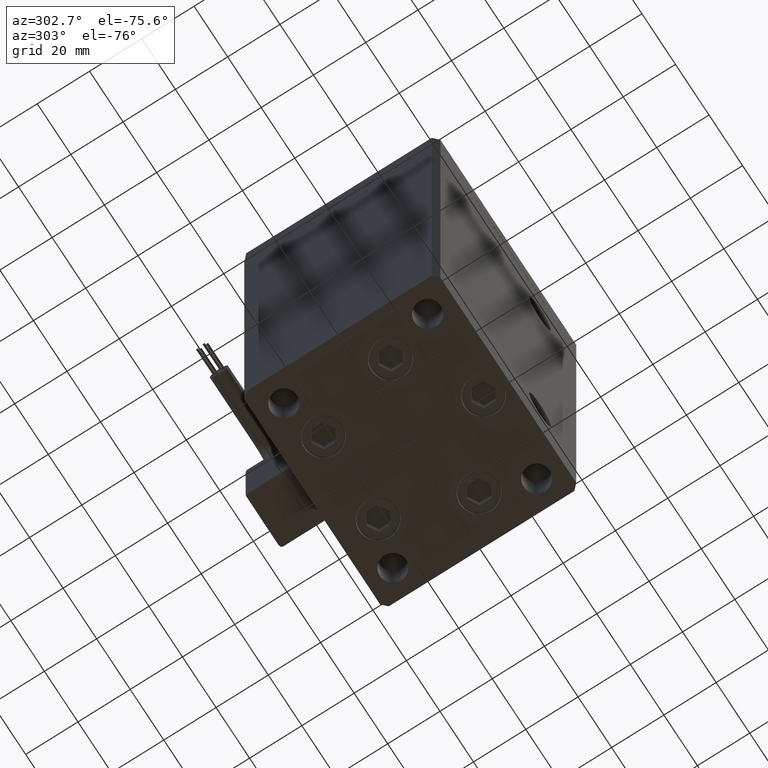
[diagram: clean part render]
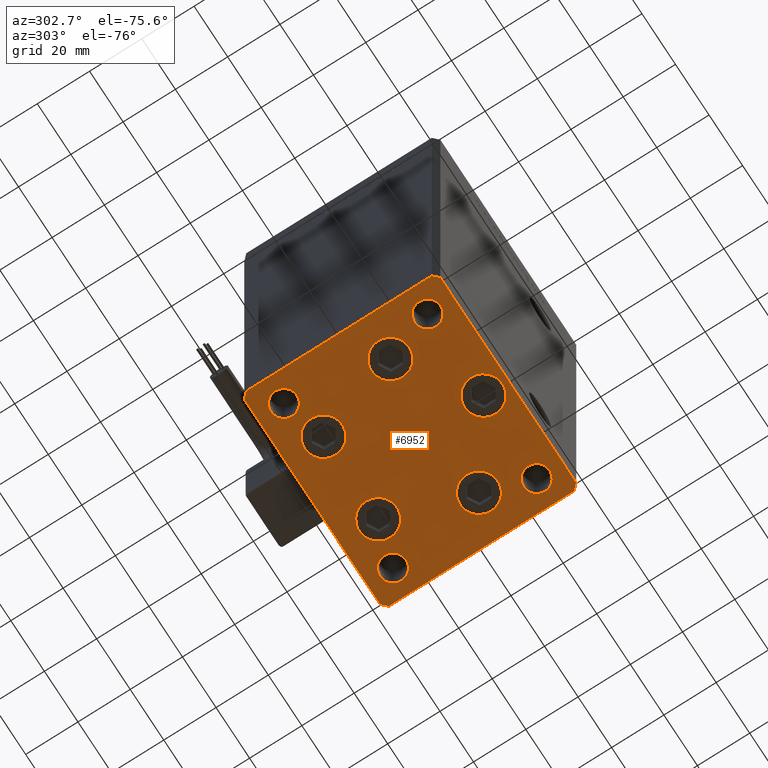
[diagram: same view with one face highlighted and labeled with its STEP entity id]
A machine part, auxiliary view. The second image highlights one B-rep face of the part: STEP entity #6952.
In plain terms, the highlighted planar face has unit normal (0, 0, -1).
Its self-contained STEP definition (entity closure, byte-faithful):
#37 = AXIS2_PLACEMENT_3D ( 'NONE', #1556, #23047, #48180 ) ;
#322 = CARTESIAN_POINT ( 'NONE',  ( -37.50000000000000711, -27.49999999999999645, 0.000000000000000000 ) ) ;
#369 = LINE ( 'NONE', #30792, #28276 ) ;
#499 = EDGE_CURVE ( 'NONE', #50581, #6062, #25852, .T. ) ;
#1437 = ORIENTED_EDGE ( 'NONE', *, *, #51321, .T. ) ;
#1556 = CARTESIAN_POINT ( 'NONE',  ( 16.32291334290542295, 22.75000000000000000, 0.000000000000000000 ) ) ;
#1622 = CIRCLE ( 'NONE', #31940, 7.249999999999999112 ) ;
#1867 = EDGE_CURVE ( 'NONE', #52690, #33527, #45530, .T. ) ;
#1925 = EDGE_LOOP ( 'NONE', ( #34510, #31298 ) ) ;
#1980 = CARTESIAN_POINT ( 'NONE',  ( -40.50000000000000711, 37.49999999999997868, 0.000000000000000000 ) ) ;
#1992 = DIRECTION ( 'NONE',  ( 1.000000000000000000, 0.000000000000000000, 0.000000000000000000 ) ) ;
#2392 = VERTEX_POINT ( 'NONE', #25935 ) ;
#2696 = ORIENTED_EDGE ( 'NONE', *, *, #33254, .T. ) ;
#2817 = DIRECTION ( 'NONE',  ( -0.000000000000000000, 0.000000000000000000, 1.000000000000000000 ) ) ;
#3478 = LINE ( 'NONE', #55120, #55264 ) ;
#3623 = DIRECTION ( 'NONE',  ( 1.000000000000000000, 0.000000000000000000, 0.000000000000000000 ) ) ;
#4168 = CIRCLE ( 'NONE', #29110, 7.249999999999999112 ) ;
#4330 = CIRCLE ( 'NONE', #25715, 7.250000000000000000 ) ;
#4374 = DIRECTION ( 'NONE',  ( 9.773090005503140331E-17, -1.000000000000000000, 0.000000000000000000 ) ) ;
#4516 = CIRCLE ( 'NONE', #52678, 7.249999999999999112 ) ;
#5138 = CARTESIAN_POINT ( 'NONE',  ( -16.32291334290543006, 22.74999999999999645, 0.000000000000000000 ) ) ;
#5467 = AXIS2_PLACEMENT_3D ( 'NONE', #42102, #6965, #33172 ) ;
#5482 = ORIENTED_EDGE ( 'NONE', *, *, #29549, .F. ) ;
#6008 = VECTOR ( 'NONE', #8934, 1000.000000000000114 ) ;
#6062 = VERTEX_POINT ( 'NONE', #49219 ) ;
#6418 = DIRECTION ( 'NONE',  ( -0.000000000000000000, 0.000000000000000000, 1.000000000000000000 ) ) ;
#6614 = AXIS2_PLACEMENT_3D ( 'NONE', #5138, #22168, #27179 ) ;
#6711 = DIRECTION ( 'NONE',  ( 0.000000000000000000, -0.000000000000000000, -1.000000000000000000 ) ) ;
#6872 = ORIENTED_EDGE ( 'NONE', *, *, #48522, .T. ) ;
#6913 = DIRECTION ( 'NONE',  ( 0.000000000000000000, -0.000000000000000000, -1.000000000000000000 ) ) ;
#6952 = ADVANCED_FACE ( 'NONE', ( #43876, #39681, #23753, #35492, #36301, #31858, #36036, #27400, #44142, #48895 ), #48352, .T. ) ;
#6965 = DIRECTION ( 'NONE',  ( 0.000000000000000000, -0.000000000000000000, -1.000000000000000000 ) ) ;
#7138 = CIRCLE ( 'NONE', #15141, 5.000000000000000888 ) ;
#7148 = DIRECTION ( 'NONE',  ( 1.000000000000000000, 0.000000000000000000, 0.000000000000000000 ) ) ;
#7542 = CARTESIAN_POINT ( 'NONE',  ( -32.50000000000000000, -27.49999999999999645, 0.000000000000000000 ) ) ;
#7584 = CARTESIAN_POINT ( 'NONE',  ( -23.57291334290543006, 22.74999999999999645, 0.000000000000000000 ) ) ;
#7988 = ORIENTED_EDGE ( 'NONE', *, *, #45397, .T. ) ;
#8431 = EDGE_CURVE ( 'NONE', #48137, #51653, #9213, .T. ) ;
#8640 = AXIS2_PLACEMENT_3D ( 'NONE', #46950, #8728, #25733 ) ;
#8728 = DIRECTION ( 'NONE',  ( -0.000000000000000000, 0.000000000000000000, 1.000000000000000000 ) ) ;
#8934 = DIRECTION ( 'NONE',  ( -0.7071067811865474617, 0.7071067811865474617, 0.000000000000000000 ) ) ;
#9165 = VERTEX_POINT ( 'NONE', #322 ) ;
#9176 = AXIS2_PLACEMENT_3D ( 'NONE', #10656, #10384, #31044 ) ;
#9213 = CIRCLE ( 'NONE', #25217, 7.250000000000000000 ) ;
#9368 = ORIENTED_EDGE ( 'NONE', *, *, #499, .T. ) ;
#10239 = VERTEX_POINT ( 'NONE', #31572 ) ;
#10248 = VERTEX_POINT ( 'NONE', #1980 ) ;
#10384 = DIRECTION ( 'NONE',  ( -0.000000000000000000, 0.000000000000000000, 1.000000000000000000 ) ) ;
#10405 = VECTOR ( 'NONE', #51383, 1000.000000000000114 ) ;
#10555 = CIRCLE ( 'NONE', #42649, 7.249999999999999112 ) ;
#10656 = CARTESIAN_POINT ( 'NONE',  ( 0.000000000000000000, 0.000000000000000000, 0.000000000000000000 ) ) ;
#10809 = AXIS2_PLACEMENT_3D ( 'NONE', #23164, #52771, #36524 ) ;
#10934 = CARTESIAN_POINT ( 'NONE',  ( 37.50000000000000000, -27.49999999999999645, 0.000000000000000000 ) ) ;
#11808 = EDGE_CURVE ( 'NONE', #33905, #21523, #19983, .T. ) ;
#12461 = ORIENTED_EDGE ( 'NONE', *, *, #12602, .T. ) ;
#12545 = AXIS2_PLACEMENT_3D ( 'NONE', #7542, #6711, #3623 ) ;
#12602 = EDGE_CURVE ( 'NONE', #10248, #54551, #37538, .T. ) ;
#12923 = CARTESIAN_POINT ( 'NONE',  ( -27.50000000000000000, -27.49999999999999645, 0.000000000000000000 ) ) ;
#13326 = ORIENTED_EDGE ( 'NONE', *, *, #33974, .T. ) ;
#13846 = ORIENTED_EDGE ( 'NONE', *, *, #51572, .T. ) ;
#13970 = DIRECTION ( 'NONE',  ( 1.000000000000000000, 0.000000000000000000, 0.000000000000000000 ) ) ;
#13985 = CARTESIAN_POINT ( 'NONE',  ( -7.249999999999997335, -28.00000000000000000, 0.000000000000000000 ) ) ;
#14047 = CARTESIAN_POINT ( 'NONE',  ( 27.50000000000000355, -27.49999999999999645, 0.000000000000000000 ) ) ;
#14099 = DIRECTION ( 'NONE',  ( 0.000000000000000000, -0.000000000000000000, -1.000000000000000000 ) ) ;
#14568 = DIRECTION ( 'NONE',  ( 0.000000000000000000, -0.000000000000000000, -1.000000000000000000 ) ) ;
#15141 = AXIS2_PLACEMENT_3D ( 'NONE', #44635, #6418, #44088 ) ;
#15661 = DIRECTION ( 'NONE',  ( 1.000000000000000000, 0.000000000000000000, 0.000000000000000000 ) ) ;
#17052 = LINE ( 'NONE', #46636, #10405 ) ;
#17200 = EDGE_CURVE ( 'NONE', #45647, #10239, #49315, .T. ) ;
#17684 = DIRECTION ( 'NONE',  ( -1.172770800660376741E-15, 1.000000000000000000, 0.000000000000000000 ) ) ;
#17704 = EDGE_LOOP ( 'NONE', ( #34560, #33115 ) ) ;
#17728 = VERTEX_POINT ( 'NONE', #14047 ) ;
#18003 = CIRCLE ( 'NONE', #12545, 5.000000000000000888 ) ;
#18647 = DIRECTION ( 'NONE',  ( 1.000000000000000000, 0.000000000000000000, 0.000000000000000000 ) ) ;
#18971 = CARTESIAN_POINT ( 'NONE',  ( 26.39865316429776954, -9.333333333333330373, 0.000000000000000000 ) ) ;
#19185 = CARTESIAN_POINT ( 'NONE',  ( -42.50000000000000000, -35.50000000000000711, 0.000000000000000000 ) ) ;
#19441 = DIRECTION ( 'NONE',  ( 1.000000000000000000, 1.713307136767217096E-16, 0.000000000000000000 ) ) ;
#19983 = CIRCLE ( 'NONE', #6614, 7.249999999999999112 ) ;
#21064 = CIRCLE ( 'NONE', #27288, 5.000000000000000888 ) ;
#21523 = VERTEX_POINT ( 'NONE', #43240 ) ;
#22021 = CIRCLE ( 'NONE', #8640, 4.999999999999997335 ) ;
#22100 = CARTESIAN_POINT ( 'NONE',  ( -33.64865316429776954, -9.333333333333337478, 0.000000000000000000 ) ) ;
#22168 = DIRECTION ( 'NONE',  ( 0.000000000000000000, -0.000000000000000000, -1.000000000000000000 ) ) ;
#22835 = CARTESIAN_POINT ( 'NONE',  ( 16.32291334290542295, 22.75000000000000000, 0.000000000000000000 ) ) ;
#23047 = DIRECTION ( 'NONE',  ( 0.000000000000000000, -0.000000000000000000, -1.000000000000000000 ) ) ;
#23164 = CARTESIAN_POINT ( 'NONE',  ( -26.39865316429776954, -9.333333333333337478, 0.000000000000000000 ) ) ;
#23621 = EDGE_CURVE ( 'NONE', #35349, #25769, #22021, .T. ) ;
#23753 = FACE_BOUND ( 'NONE', #27739, .T. ) ;
#23876 = EDGE_LOOP ( 'NONE', ( #5482, #30888 ) ) ;
#23932 = EDGE_CURVE ( 'NONE', #39608, #41520, #34311, .T. ) ;
#25031 = CARTESIAN_POINT ( 'NONE',  ( 7.250000000000003553, -28.00000000000000000, 0.000000000000000000 ) ) ;
#25207 = EDGE_LOOP ( 'NONE', ( #53842, #35891 ) ) ;
#25217 = AXIS2_PLACEMENT_3D ( 'NONE', #36753, #6913, #28394 ) ;
#25715 = AXIS2_PLACEMENT_3D ( 'NONE', #43885, #27137, #15661 ) ;
#25733 = DIRECTION ( 'NONE',  ( 1.000000000000000000, 0.000000000000000000, 0.000000000000000000 ) ) ;
#25769 = VERTEX_POINT ( 'NONE', #49362 ) ;
#25852 = CIRCLE ( 'NONE', #37, 7.249999999999999112 ) ;
#25935 = CARTESIAN_POINT ( 'NONE',  ( 33.64865316429776954, -9.333333333333328596, 0.000000000000000000 ) ) ;
#26035 = EDGE_CURVE ( 'NONE', #46479, #26515, #1622, .T. ) ;
#26515 = VERTEX_POINT ( 'NONE', #38779 ) ;
#27024 = DIRECTION ( 'NONE',  ( 0.7071067811865463515, -0.7071067811865487940, 0.000000000000000000 ) ) ;
#27137 = DIRECTION ( 'NONE',  ( 0.000000000000000000, -0.000000000000000000, -1.000000000000000000 ) ) ;
#27179 = DIRECTION ( 'NONE',  ( 1.000000000000000000, 0.000000000000000000, 0.000000000000000000 ) ) ;
#27288 = AXIS2_PLACEMENT_3D ( 'NONE', #38651, #14099, #39204 ) ;
#27400 = FACE_BOUND ( 'NONE', #35952, .T. ) ;
#27565 = CARTESIAN_POINT ( 'NONE',  ( 27.50000000000000355, 27.49999999999999645, 0.000000000000000000 ) ) ;
#27571 = LINE ( 'NONE', #19185, #48206 ) ;
#27739 = EDGE_LOOP ( 'NONE', ( #13326, #54460 ) ) ;
#28276 = VECTOR ( 'NONE', #17684, 1000.000000000000000 ) ;
#28353 = CARTESIAN_POINT ( 'NONE',  ( -26.39865316429776954, -9.333333333333337478, 0.000000000000000000 ) ) ;
#28394 = DIRECTION ( 'NONE',  ( 1.000000000000000000, 0.000000000000000000, 0.000000000000000000 ) ) ;
#28759 = ORIENTED_EDGE ( 'NONE', *, *, #17200, .T. ) ;
#28847 = EDGE_LOOP ( 'NONE', ( #52398, #28759, #50260, #29434, #47980, #7988, #12461, #13846 ) ) ;
#29009 = CARTESIAN_POINT ( 'NONE',  ( 23.57291334290542295, 22.75000000000000000, 0.000000000000000000 ) ) ;
#29110 = AXIS2_PLACEMENT_3D ( 'NONE', #18971, #44360, #13970 ) ;
#29141 = DIRECTION ( 'NONE',  ( -1.000000000000000000, -3.426614273534436165E-16, 0.000000000000000000 ) ) ;
#29162 = CARTESIAN_POINT ( 'NONE',  ( -40.50000000000000711, 37.49999999999997868, 0.000000000000000000 ) ) ;
#29434 = ORIENTED_EDGE ( 'NONE', *, *, #34623, .T. ) ;
#29436 = DIRECTION ( 'NONE',  ( -0.7071067811865463515, -0.7071067811865487940, 0.000000000000000000 ) ) ;
#29549 = EDGE_CURVE ( 'NONE', #25769, #35349, #54293, .T. ) ;
#29577 = VERTEX_POINT ( 'NONE', #10934 ) ;
#30370 = CARTESIAN_POINT ( 'NONE',  ( -27.50000000000000000, 27.50000000000000355, 0.000000000000000000 ) ) ;
#30792 = CARTESIAN_POINT ( 'NONE',  ( 42.50000000000000711, -35.50000000000000000, 0.000000000000000000 ) ) ;
#30888 = ORIENTED_EDGE ( 'NONE', *, *, #23621, .F. ) ;
#31044 = DIRECTION ( 'NONE',  ( 1.000000000000000000, 0.000000000000000000, 0.000000000000000000 ) ) ;
#31142 = AXIS2_PLACEMENT_3D ( 'NONE', #53362, #2817, #40501 ) ;
#31220 = CARTESIAN_POINT ( 'NONE',  ( 32.50000000000000000, -27.49999999999999645, 0.000000000000000000 ) ) ;
#31253 = EDGE_CURVE ( 'NONE', #26515, #46479, #53599, .T. ) ;
#31281 = EDGE_CURVE ( 'NONE', #33527, #52690, #7138, .T. ) ;
#31298 = ORIENTED_EDGE ( 'NONE', *, *, #42398, .T. ) ;
#31371 = EDGE_CURVE ( 'NONE', #2392, #31592, #44654, .T. ) ;
#31495 = DIRECTION ( 'NONE',  ( 1.000000000000000000, 0.000000000000000000, 0.000000000000000000 ) ) ;
#31572 = CARTESIAN_POINT ( 'NONE',  ( 40.50000000000000000, -37.50000000000000711, 0.000000000000000000 ) ) ;
#31592 = VERTEX_POINT ( 'NONE', #53238 ) ;
#31858 = FACE_BOUND ( 'NONE', #23876, .T. ) ;
#31940 = AXIS2_PLACEMENT_3D ( 'NONE', #28353, #45642, #7148 ) ;
#32662 = ORIENTED_EDGE ( 'NONE', *, *, #1867, .F. ) ;
#32850 = DIRECTION ( 'NONE',  ( 0.000000000000000000, -0.000000000000000000, -1.000000000000000000 ) ) ;
#33115 = ORIENTED_EDGE ( 'NONE', *, *, #41605, .T. ) ;
#33172 = DIRECTION ( 'NONE',  ( 1.000000000000000000, 0.000000000000000000, 0.000000000000000000 ) ) ;
#33254 = EDGE_CURVE ( 'NONE', #37260, #9165, #21064, .T. ) ;
#33527 = VERTEX_POINT ( 'NONE', #46418 ) ;
#33905 = VERTEX_POINT ( 'NONE', #7584 ) ;
#33913 = VECTOR ( 'NONE', #4374, 1000.000000000000000 ) ;
#33930 = EDGE_CURVE ( 'NONE', #10239, #42208, #17052, .T. ) ;
#33974 = EDGE_CURVE ( 'NONE', #31592, #2392, #4168, .T. ) ;
#34311 = LINE ( 'NONE', #47159, #6008 ) ;
#34510 = ORIENTED_EDGE ( 'NONE', *, *, #8431, .T. ) ;
#34560 = ORIENTED_EDGE ( 'NONE', *, *, #11808, .T. ) ;
#34623 = EDGE_CURVE ( 'NONE', #42208, #39608, #369, .T. ) ;
#35349 = VERTEX_POINT ( 'NONE', #27565 ) ;
#35492 = FACE_BOUND ( 'NONE', #1925, .T. ) ;
#35891 = ORIENTED_EDGE ( 'NONE', *, *, #51544, .T. ) ;
#35933 = CARTESIAN_POINT ( 'NONE',  ( -42.50000000000000711, 35.49999999999997158, 0.000000000000000000 ) ) ;
#35952 = EDGE_LOOP ( 'NONE', ( #32662, #49160 ) ) ;
#36036 = FACE_BOUND ( 'NONE', #25207, .T. ) ;
#36301 = FACE_BOUND ( 'NONE', #50106, .T. ) ;
#36524 = DIRECTION ( 'NONE',  ( 1.000000000000000000, 0.000000000000000000, 0.000000000000000000 ) ) ;
#36568 = CIRCLE ( 'NONE', #50862, 4.999999999999997335 ) ;
#36753 = CARTESIAN_POINT ( 'NONE',  ( 3.429011037612589276E-15, -28.00000000000000000, 0.000000000000000000 ) ) ;
#36937 = VECTOR ( 'NONE', #19441, 1000.000000000000000 ) ;
#37260 = VERTEX_POINT ( 'NONE', #12923 ) ;
#37538 = LINE ( 'NONE', #29162, #40504 ) ;
#38651 = CARTESIAN_POINT ( 'NONE',  ( -32.50000000000000000, -27.49999999999999645, 0.000000000000000000 ) ) ;
#38779 = CARTESIAN_POINT ( 'NONE',  ( -19.14865316429777309, -9.333333333333335702, 0.000000000000000000 ) ) ;
#39204 = DIRECTION ( 'NONE',  ( 1.000000000000000000, 0.000000000000000000, 0.000000000000000000 ) ) ;
#39608 = VERTEX_POINT ( 'NONE', #53023 ) ;
#39681 = FACE_BOUND ( 'NONE', #47435, .T. ) ;
#39845 = DIRECTION ( 'NONE',  ( 0.000000000000000000, -0.000000000000000000, -1.000000000000000000 ) ) ;
#40501 = DIRECTION ( 'NONE',  ( 1.000000000000000000, 0.000000000000000000, 0.000000000000000000 ) ) ;
#40504 = VECTOR ( 'NONE', #29436, 1000.000000000000000 ) ;
#40778 = EDGE_LOOP ( 'NONE', ( #2696, #1437 ) ) ;
#40924 = CARTESIAN_POINT ( 'NONE',  ( -40.49999999999999289, -37.50000000000002132, 0.000000000000000000 ) ) ;
#41111 = VERTEX_POINT ( 'NONE', #41137 ) ;
#41137 = CARTESIAN_POINT ( 'NONE',  ( -42.50000000000000000, -35.50000000000000711, 0.000000000000000000 ) ) ;
#41501 = CARTESIAN_POINT ( 'NONE',  ( 32.50000000000000000, -27.49999999999999645, 0.000000000000000000 ) ) ;
#41520 = VERTEX_POINT ( 'NONE', #47228 ) ;
#41605 = EDGE_CURVE ( 'NONE', #21523, #33905, #10555, .T. ) ;
#41945 = AXIS2_PLACEMENT_3D ( 'NONE', #46388, #54229, #53951 ) ;
#42102 = CARTESIAN_POINT ( 'NONE',  ( 26.39865316429776954, -9.333333333333330373, 0.000000000000000000 ) ) ;
#42116 = ORIENTED_EDGE ( 'NONE', *, *, #26035, .T. ) ;
#42208 = VERTEX_POINT ( 'NONE', #44826 ) ;
#42398 = EDGE_CURVE ( 'NONE', #51653, #48137, #4330, .T. ) ;
#42649 = AXIS2_PLACEMENT_3D ( 'NONE', #48616, #14568, #1992 ) ;
#43240 = CARTESIAN_POINT ( 'NONE',  ( -9.072913342905431833, 22.74999999999999645, 0.000000000000000000 ) ) ;
#43876 = FACE_BOUND ( 'NONE', #17704, .T. ) ;
#43885 = CARTESIAN_POINT ( 'NONE',  ( 3.429011037612589276E-15, -28.00000000000000000, 0.000000000000000000 ) ) ;
#44088 = DIRECTION ( 'NONE',  ( 1.000000000000000000, 0.000000000000000000, 0.000000000000000000 ) ) ;
#44142 = FACE_OUTER_BOUND ( 'NONE', #28847, .T. ) ;
#44360 = DIRECTION ( 'NONE',  ( 0.000000000000000000, -0.000000000000000000, -1.000000000000000000 ) ) ;
#44635 = CARTESIAN_POINT ( 'NONE',  ( -32.50000000000000000, 27.50000000000000355, 0.000000000000000000 ) ) ;
#44654 = CIRCLE ( 'NONE', #5467, 7.249999999999999112 ) ;
#44826 = CARTESIAN_POINT ( 'NONE',  ( 42.50000000000000711, -35.50000000000000000, 0.000000000000000000 ) ) ;
#45397 = EDGE_CURVE ( 'NONE', #41520, #10248, #3478, .T. ) ;
#45530 = CIRCLE ( 'NONE', #41945, 5.000000000000000888 ) ;
#45642 = DIRECTION ( 'NONE',  ( 0.000000000000000000, -0.000000000000000000, -1.000000000000000000 ) ) ;
#45647 = VERTEX_POINT ( 'NONE', #50307 ) ;
#46388 = CARTESIAN_POINT ( 'NONE',  ( -32.50000000000000000, 27.50000000000000355, 0.000000000000000000 ) ) ;
#46418 = CARTESIAN_POINT ( 'NONE',  ( -37.50000000000000711, 27.50000000000000355, 0.000000000000000000 ) ) ;
#46479 = VERTEX_POINT ( 'NONE', #22100 ) ;
#46523 = LINE ( 'NONE', #50722, #33913 ) ;
#46636 = CARTESIAN_POINT ( 'NONE',  ( 40.50000000000000000, -37.50000000000000711, 0.000000000000000000 ) ) ;
#46950 = CARTESIAN_POINT ( 'NONE',  ( 32.50000000000000000, 27.49999999999999645, 0.000000000000000000 ) ) ;
#47159 = CARTESIAN_POINT ( 'NONE',  ( 42.49999999999992895, 35.50000000000000000, 0.000000000000000000 ) ) ;
#47228 = CARTESIAN_POINT ( 'NONE',  ( 40.49999999999991473, 37.50000000000000711, 0.000000000000000000 ) ) ;
#47435 = EDGE_LOOP ( 'NONE', ( #6872, #9368 ) ) ;
#47980 = ORIENTED_EDGE ( 'NONE', *, *, #23932, .T. ) ;
#48137 = VERTEX_POINT ( 'NONE', #13985 ) ;
#48180 = DIRECTION ( 'NONE',  ( 1.000000000000000000, 0.000000000000000000, 0.000000000000000000 ) ) ;
#48206 = VECTOR ( 'NONE', #27024, 1000.000000000000000 ) ;
#48352 = PLANE ( 'NONE',  #9176 ) ;
#48482 = EDGE_CURVE ( 'NONE', #41111, #45647, #27571, .T. ) ;
#48522 = EDGE_CURVE ( 'NONE', #6062, #50581, #4516, .T. ) ;
#48616 = CARTESIAN_POINT ( 'NONE',  ( -16.32291334290543006, 22.74999999999999645, 0.000000000000000000 ) ) ;
#48895 = FACE_BOUND ( 'NONE', #40778, .T. ) ;
#49160 = ORIENTED_EDGE ( 'NONE', *, *, #31281, .F. ) ;
#49193 = CIRCLE ( 'NONE', #53534, 4.999999999999997335 ) ;
#49219 = CARTESIAN_POINT ( 'NONE',  ( 9.072913342905424727, 22.75000000000000000, 0.000000000000000000 ) ) ;
#49315 = LINE ( 'NONE', #40924, #36937 ) ;
#49362 = CARTESIAN_POINT ( 'NONE',  ( 37.50000000000000000, 27.49999999999999645, 0.000000000000000000 ) ) ;
#50106 = EDGE_LOOP ( 'NONE', ( #42116, #51011 ) ) ;
#50260 = ORIENTED_EDGE ( 'NONE', *, *, #33930, .T. ) ;
#50307 = CARTESIAN_POINT ( 'NONE',  ( -40.49999999999999289, -37.50000000000002132, 0.000000000000000000 ) ) ;
#50581 = VERTEX_POINT ( 'NONE', #29009 ) ;
#50722 = CARTESIAN_POINT ( 'NONE',  ( -42.50000000000000711, 35.49999999999997158, 0.000000000000000000 ) ) ;
#50862 = AXIS2_PLACEMENT_3D ( 'NONE', #41501, #32850, #53262 ) ;
#51011 = ORIENTED_EDGE ( 'NONE', *, *, #31253, .T. ) ;
#51321 = EDGE_CURVE ( 'NONE', #9165, #37260, #18003, .T. ) ;
#51383 = DIRECTION ( 'NONE',  ( 0.7071067811865474617, 0.7071067811865474617, 0.000000000000000000 ) ) ;
#51434 = EDGE_CURVE ( 'NONE', #29577, #17728, #49193, .T. ) ;
#51544 = EDGE_CURVE ( 'NONE', #17728, #29577, #36568, .T. ) ;
#51572 = EDGE_CURVE ( 'NONE', #54551, #41111, #46523, .T. ) ;
#51653 = VERTEX_POINT ( 'NONE', #25031 ) ;
#51902 = DIRECTION ( 'NONE',  ( 0.000000000000000000, -0.000000000000000000, -1.000000000000000000 ) ) ;
#52398 = ORIENTED_EDGE ( 'NONE', *, *, #48482, .T. ) ;
#52678 = AXIS2_PLACEMENT_3D ( 'NONE', #22835, #39845, #18647 ) ;
#52690 = VERTEX_POINT ( 'NONE', #30370 ) ;
#52771 = DIRECTION ( 'NONE',  ( 0.000000000000000000, -0.000000000000000000, -1.000000000000000000 ) ) ;
#53023 = CARTESIAN_POINT ( 'NONE',  ( 42.49999999999992895, 35.50000000000000000, 0.000000000000000000 ) ) ;
#53238 = CARTESIAN_POINT ( 'NONE',  ( 19.14865316429777309, -9.333333333333330373, 0.000000000000000000 ) ) ;
#53262 = DIRECTION ( 'NONE',  ( 1.000000000000000000, 0.000000000000000000, 0.000000000000000000 ) ) ;
#53362 = CARTESIAN_POINT ( 'NONE',  ( 32.50000000000000000, 27.49999999999999645, 0.000000000000000000 ) ) ;
#53534 = AXIS2_PLACEMENT_3D ( 'NONE', #31220, #51902, #31495 ) ;
#53599 = CIRCLE ( 'NONE', #10809, 7.249999999999999112 ) ;
#53842 = ORIENTED_EDGE ( 'NONE', *, *, #51434, .T. ) ;
#53951 = DIRECTION ( 'NONE',  ( 1.000000000000000000, 0.000000000000000000, 0.000000000000000000 ) ) ;
#54229 = DIRECTION ( 'NONE',  ( -0.000000000000000000, 0.000000000000000000, 1.000000000000000000 ) ) ;
#54293 = CIRCLE ( 'NONE', #31142, 4.999999999999997335 ) ;
#54460 = ORIENTED_EDGE ( 'NONE', *, *, #31371, .T. ) ;
#54551 = VERTEX_POINT ( 'NONE', #35933 ) ;
#55120 = CARTESIAN_POINT ( 'NONE',  ( 40.49999999999991473, 37.50000000000000711, 0.000000000000000000 ) ) ;
#55264 = VECTOR ( 'NONE', #29141, 1000.000000000000000 ) ;